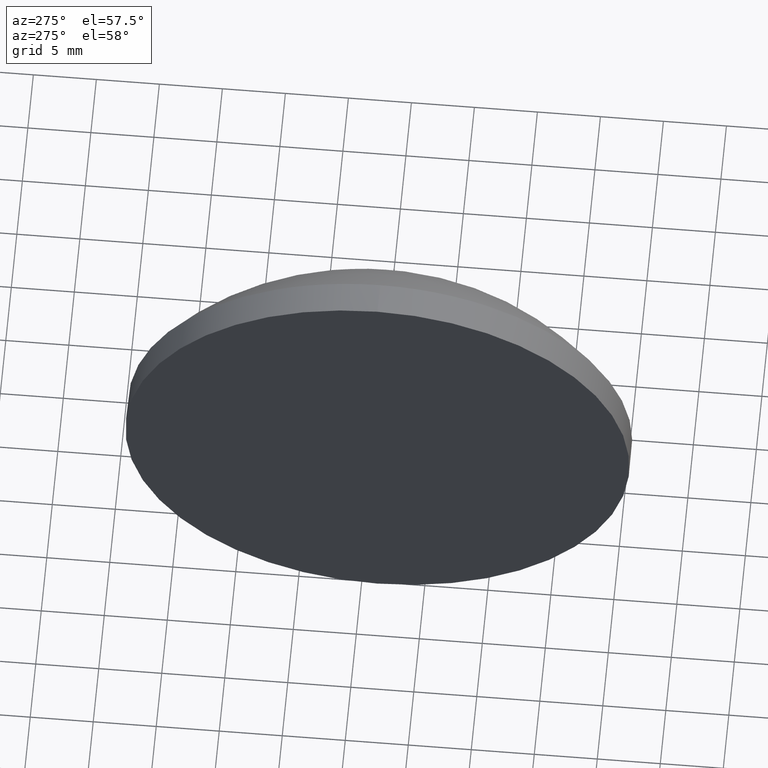
[diagram: clean part render]
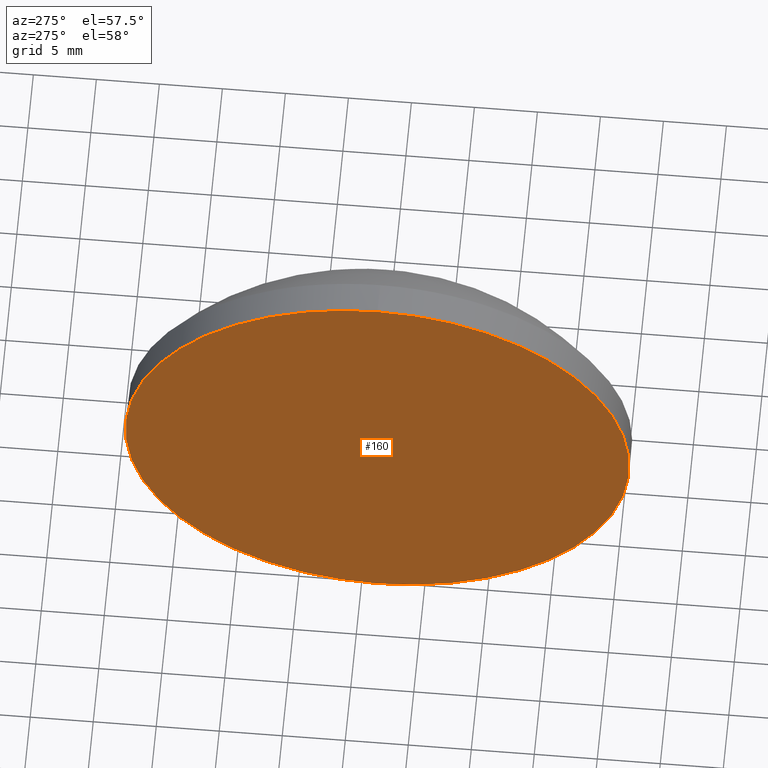
[diagram: same view with one face highlighted and labeled with its STEP entity id]
A machine part, auxiliary view. The second image highlights one B-rep face of the part: STEP entity #160.
In plain terms, the highlighted planar face has unit normal (1, 0, 0).
Its self-contained STEP definition (entity closure, byte-faithful):
#2 = CIRCLE ( 'NONE', #162, 20.00000000000000400 ) ;
#11 = DIRECTION ( 'NONE',  ( -1.000000000000000000, -0.0000000000000000000, -0.0000000000000000000 ) ) ;
#18 = DIRECTION ( 'NONE',  ( 1.000000000000000000, 0.0000000000000000000, 0.0000000000000000000 ) ) ;
#26 = DIRECTION ( 'NONE',  ( -1.000000000000000000, -0.0000000000000000000, -0.0000000000000000000 ) ) ;
#31 = CARTESIAN_POINT ( 'NONE',  ( 389.3094937531328100, 98.70227120915240000, 0.0000000000000000000 ) ) ;
#33 = VERTEX_POINT ( 'NONE', #67 ) ;
#55 = DIRECTION ( 'NONE',  ( 0.0000000000000000000, 0.0000000000000000000, -1.000000000000000000 ) ) ;
#67 = CARTESIAN_POINT ( 'NONE',  ( 389.3094937531328100, 98.70227120915240000, 20.00000000000000400 ) ) ;
#74 = FACE_OUTER_BOUND ( 'NONE', #109, .T. ) ;
#78 = AXIS2_PLACEMENT_3D ( 'NONE', #168, #18, #55 ) ;
#87 = CARTESIAN_POINT ( 'NONE',  ( 389.3094937531328100, 98.70227120915240000, -20.00000000000000400 ) ) ;
#91 = ORIENTED_EDGE ( 'NONE', *, *, #119, .T. ) ;
#93 = EDGE_CURVE ( 'NONE', #161, #33, #2, .T. ) ;
#98 = CARTESIAN_POINT ( 'NONE',  ( 389.3094937531328100, 98.70227120915240000, 0.0000000000000000000 ) ) ;
#101 = DIRECTION ( 'NONE',  ( 0.0000000000000000000, 0.0000000000000000000, 1.000000000000000000 ) ) ;
#109 = EDGE_LOOP ( 'NONE', ( #91, #153 ) ) ;
#119 = EDGE_CURVE ( 'NONE', #33, #161, #175, .T. ) ;
#128 = PLANE ( 'NONE',  #78 ) ;
#136 = AXIS2_PLACEMENT_3D ( 'NONE', #98, #26, #101 ) ;
#153 = ORIENTED_EDGE ( 'NONE', *, *, #93, .T. ) ;
#160 = ADVANCED_FACE ( 'NONE', ( #74 ), #128, .F. ) ;
#161 = VERTEX_POINT ( 'NONE', #87 ) ;
#162 = AXIS2_PLACEMENT_3D ( 'NONE', #31, #11, #169 ) ;
#168 = CARTESIAN_POINT ( 'NONE',  ( 389.3094937531328100, 98.70227120915240000, 0.0000000000000000000 ) ) ;
#169 = DIRECTION ( 'NONE',  ( 0.0000000000000000000, 0.0000000000000000000, 1.000000000000000000 ) ) ;
#175 = CIRCLE ( 'NONE', #136, 20.00000000000000400 ) ;